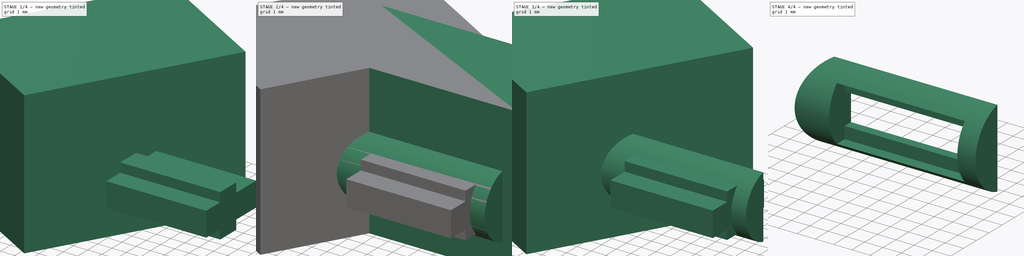
[diagram: build sequence overview — one tinted view per stage of 4, left to right]
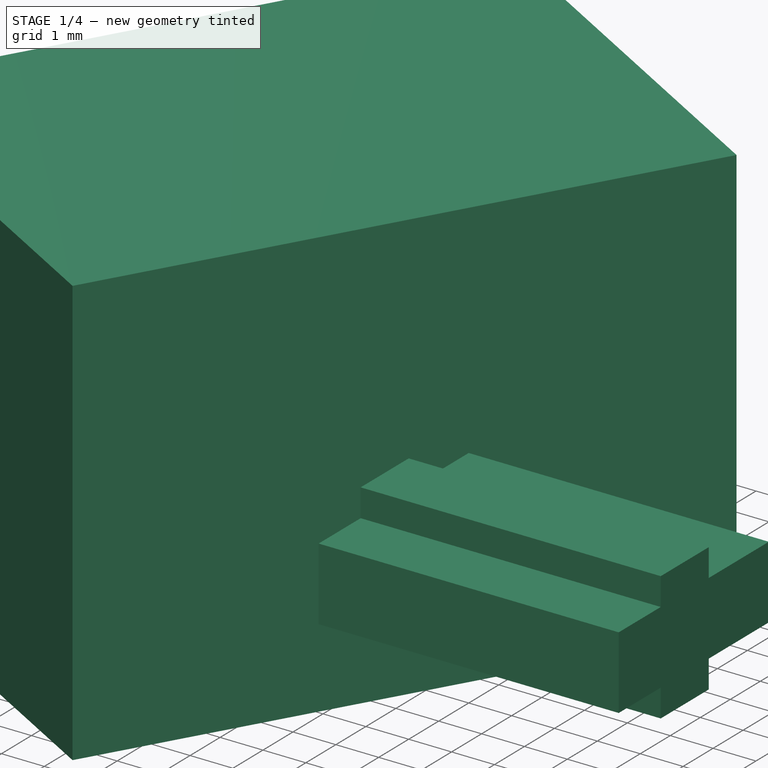
[diagram: stage 1 of 4 — iso view after this stage's code; geometry added in this stage tinted green]
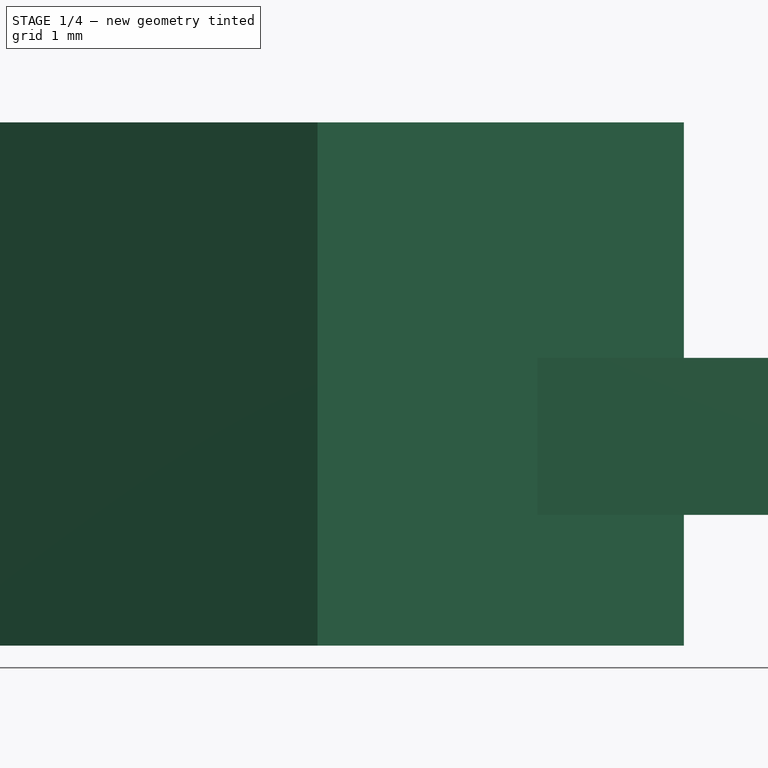
[diagram: stage 1 of 4 — front view after this stage's code; geometry added in this stage tinted green]
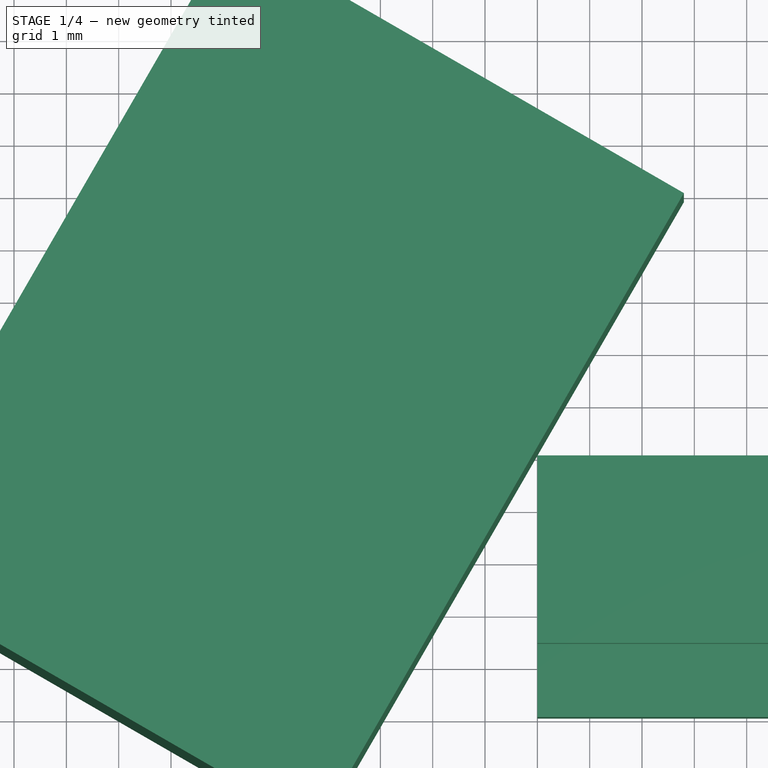
[diagram: stage 1 of 4 — top view after this stage's code; geometry added in this stage tinted green]
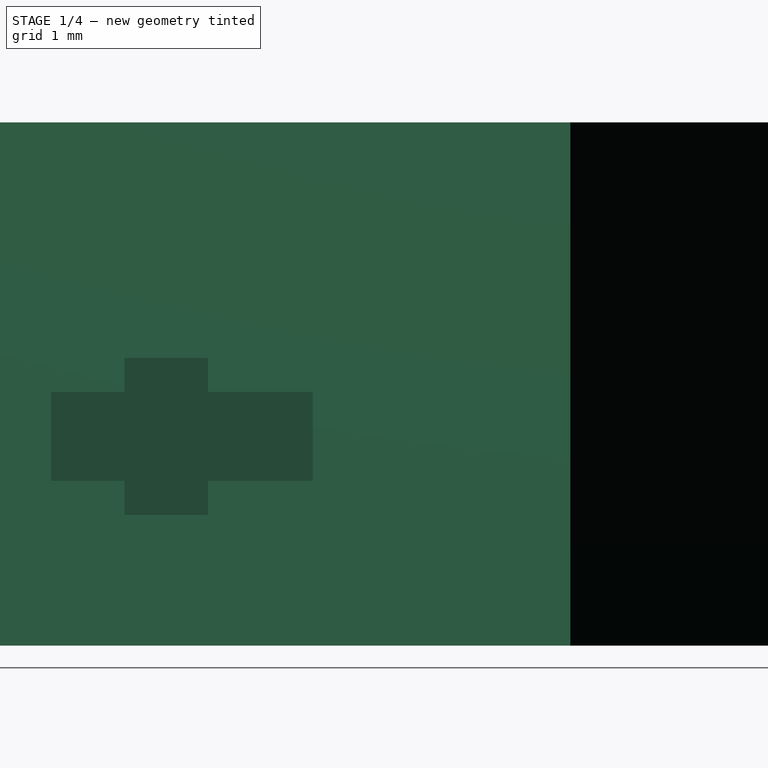
[diagram: stage 1 of 4 — right view after this stage's code; geometry added in this stage tinted green]
FCSTD DOCUMENT  (FreeCAD 0.20R29603 (Git))
Label: tem_mirror_flat2
License: All rights reserved
LicenseURL: http://en.wikipedia.org/wiki/All_rights_reserved
objects: Part::Cut×5, Part::Box×4, Sketcher::SketchObject×1, PartDesign::Revolution×1, PartDesign::Body×1, Part::Cylinder×1
note: 14 computed .brp shape members not serialized (recipe doc carries the construction recipe); baked Part::Feature solids carry a one-line shape summary decoded from their .brp

FEATURE [Part::Box] Box001  label="Würfel001"
  AttacherType = Attacher::AttachEngine3D
  Height = 1.7
  Length = 7
  Placement = pos=(1,-4,-0.85) rot=(0,0,1;0rad)
  Width = 5
FEATURE [Part::Box] Box002  label="Würfel002"
  AttacherType = Attacher::AttachEngine3D
  Height = 3
  Length = 7
  Placement = pos=(1,-2.6,-1.5) rot=(0,0,1;0rad)
  Width = 1.6
FEATURE [Part::Box] Box003  label="Würfel003"
  AttacherType = Attacher::AttachEngine3D
  Height = 10
  Length = 14
  Placement = pos=(-3.2,-6.2,-4) rot=(0,0,1;1.0472rad)
  Width = 10
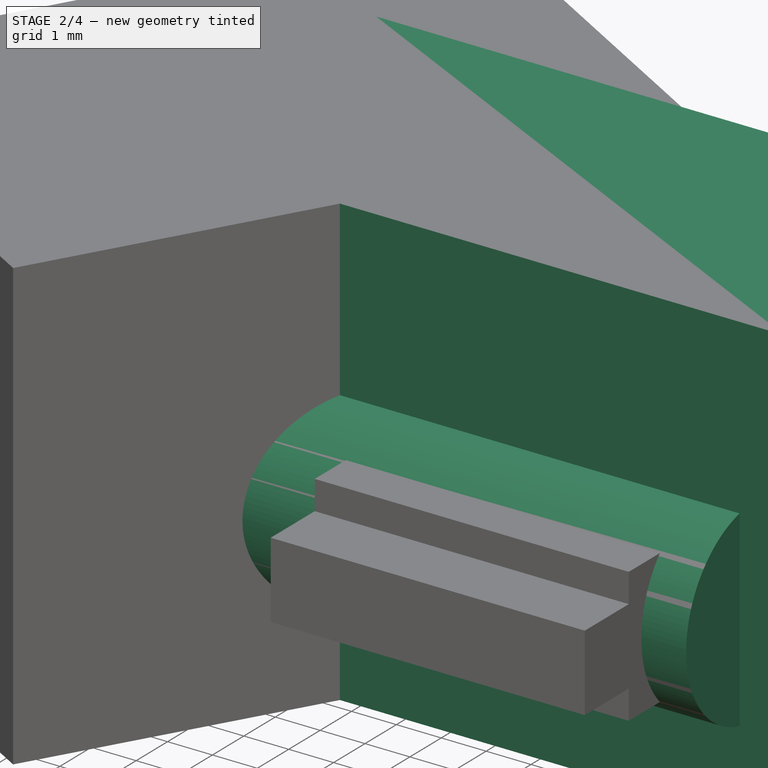
[diagram: stage 2 of 4 — iso view after this stage's code; geometry added in this stage tinted green]
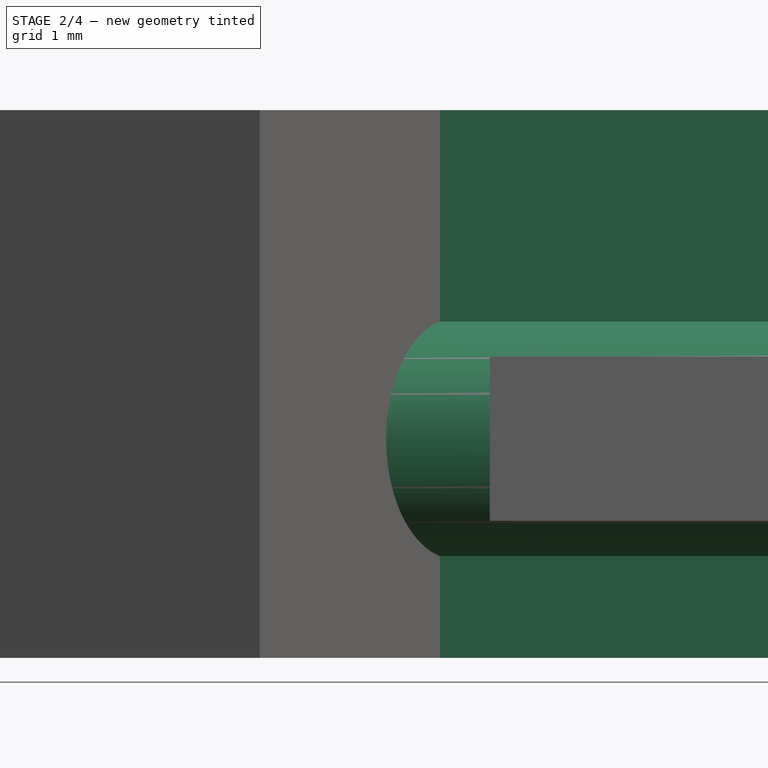
[diagram: stage 2 of 4 — front view after this stage's code; geometry added in this stage tinted green]
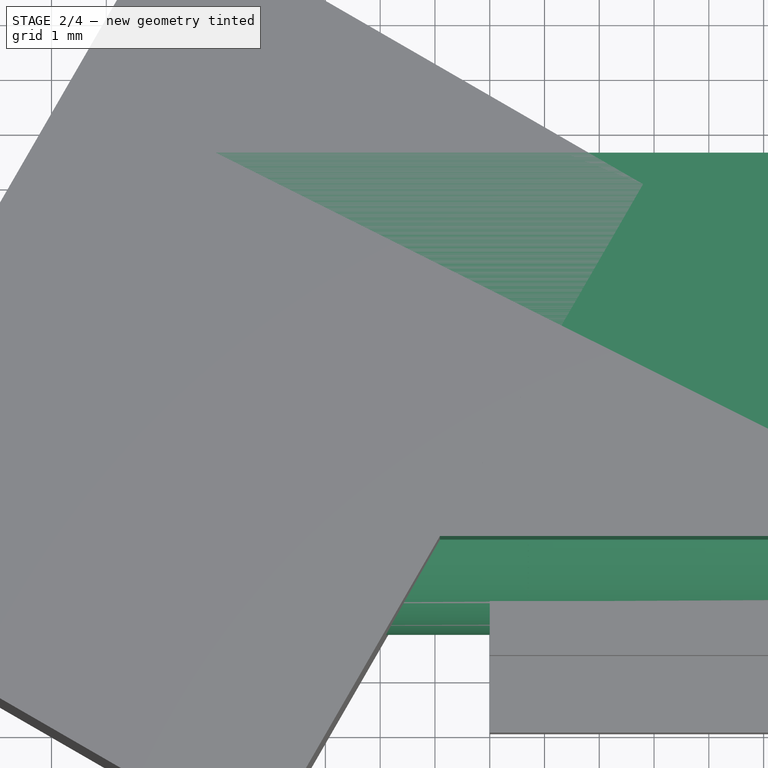
[diagram: stage 2 of 4 — top view after this stage's code; geometry added in this stage tinted green]
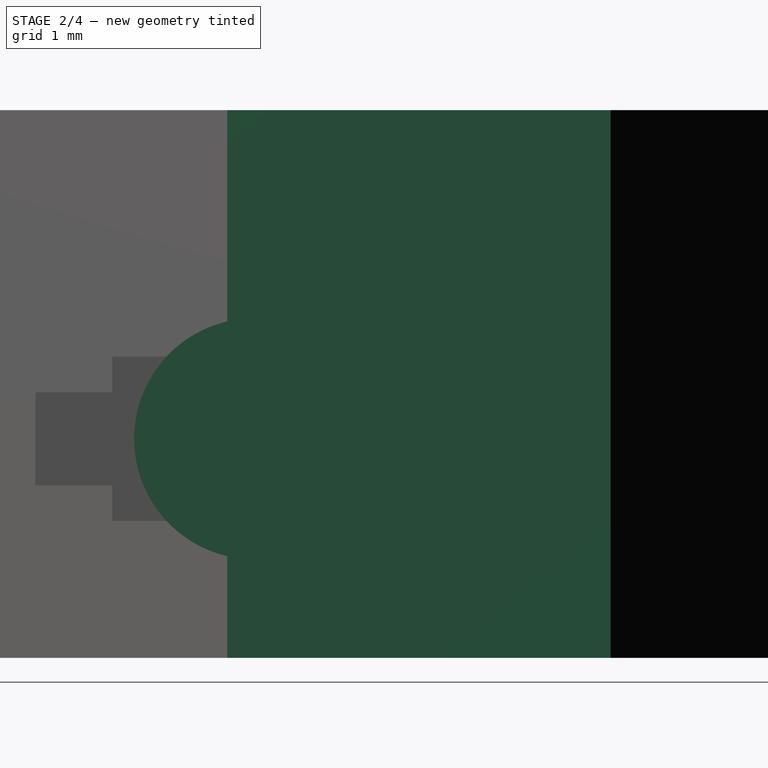
[diagram: stage 2 of 4 — right view after this stage's code; geometry added in this stage tinted green]
FEATURE [Sketcher::SketchObject] Sketch
  FullyConstrained = true
  MapMode = 5
  Support = -> [XY_Plane]
  sketch-geometry (5):
    g0: ArcOfParabola CenterX=2.24 CenterY=0 CenterZ=0 NormalX=0 NormalY=0 NormalZ=1 Focal=2.24 AngleXU=-3.14159 StartAngle=-2.2 EndAngle=0
    g1: GeomPoint X=0 Y=-3e-16 Z=0
    g2: LineSegment StartX=2.24 StartY=0 StartZ=0 EndX=0 EndY=-3e-16 EndZ=0
    g3: LineSegment StartX=1.69982 StartY=2.2 StartZ=0 EndX=1.69982 EndY=0 EndZ=0
    g4: LineSegment StartX=1.69982 StartY=0 StartZ=0 EndX=2.24 EndY=0 EndZ=0
  constraints (13):
    c: InternalAlignment(g1,g0)
    c: Coincident(g1,g2)
    c: Coincident(g0,g2)
    c: Coincident(g1,g-1)
    c: PointOnObject(g0,g-1)
    c: PointOnObject(g0,g-1)
    c: Coincident(g3,g0)
    c: PointOnObject(g3,g2)
    c: Vertical(g3)
    c: Coincident(g4,g3)
    c: Coincident(g4,g0)
    c: DistanceY(g3,g0) = 2.2
    c: DistanceX(g1,g0) = 2.24
FEATURE [PartDesign::Revolution] Revolution
  Angle = 360
  Axis = (1,0,0)
  Base = (0,0,0)
  Profile = -> Sketch
  ReferenceAxis = -> Sketch [H_Axis]
FEATURE [PartDesign::Body] Body
  Group = -> [Sketch,Revolution]
  Origin = -> Origin
  Placement = pos=(-1.7,20,0) rot=(0,0,1;0rad)
  Tip = -> Revolution
FEATURE [Part::Cylinder] Cylinder  label="Zylinder"
  Angle = 360
  AttacherType = Attacher::AttachEngine3D
  FirstAngle = 0
  Height = 13
  Placement = pos=(-4,0,0) rot=(0,1,0;1.5708rad)
  Radius = 2.2
  SecondAngle = 0
FEATURE [Part::Box] Box  label="Würfel"
  AttacherType = Attacher::AttachEngine3D
  Height = 10
  Length = 14
  Placement = pos=(-4,-0.5,-4) rot=(0,0,1;0rad)
  Width = 7
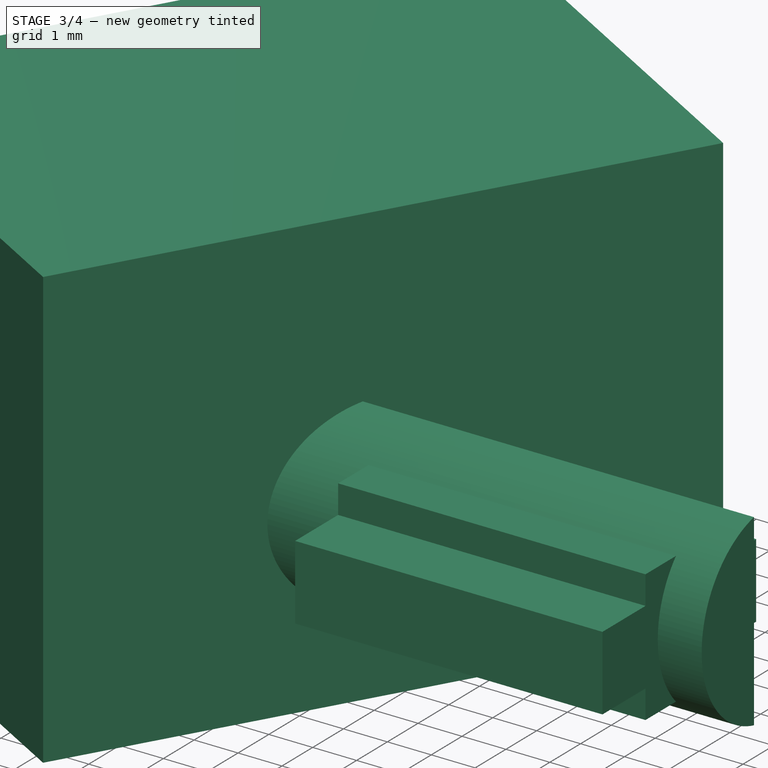
[diagram: stage 3 of 4 — iso view after this stage's code; geometry added in this stage tinted green]
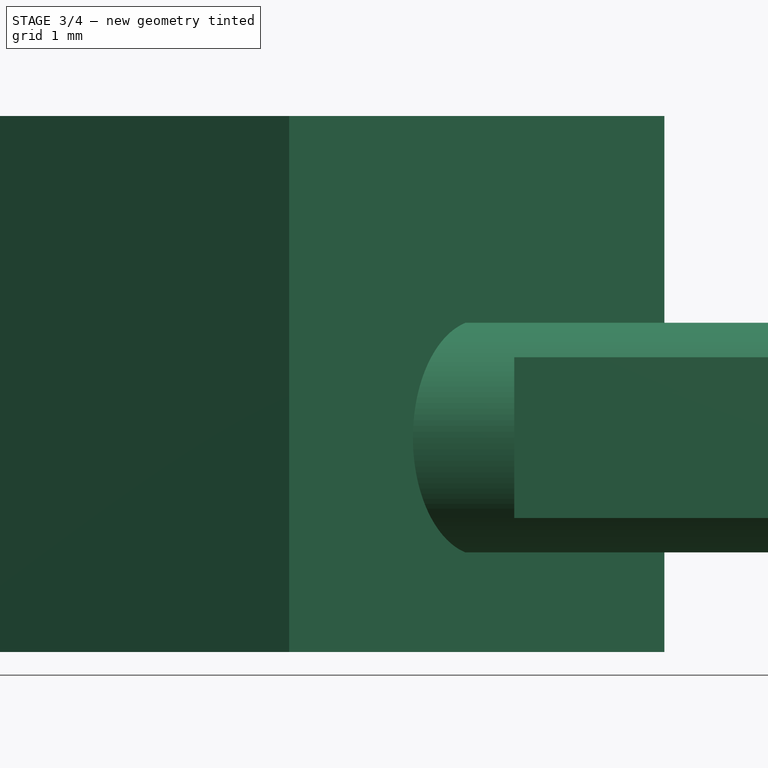
[diagram: stage 3 of 4 — front view after this stage's code; geometry added in this stage tinted green]
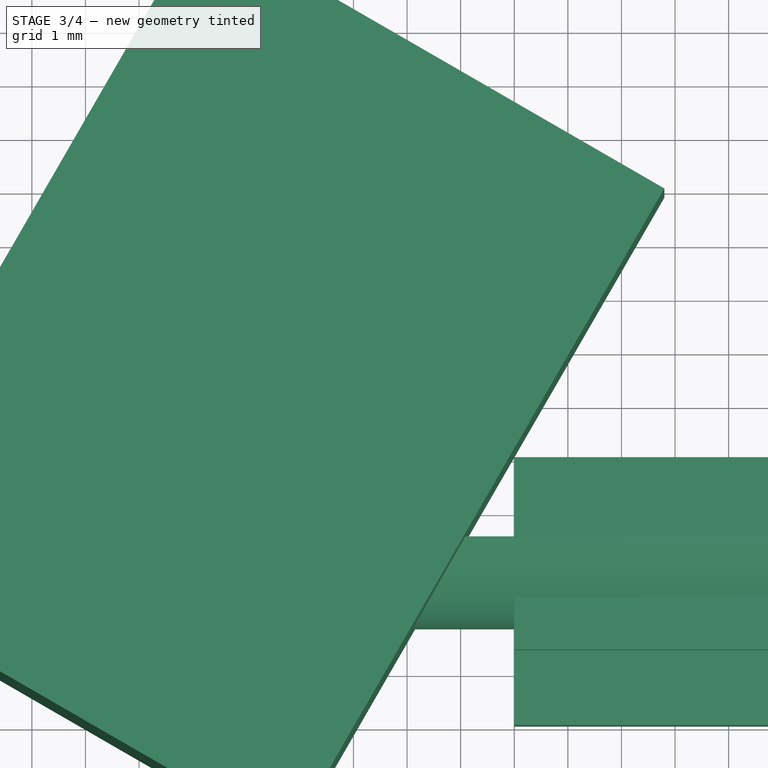
[diagram: stage 3 of 4 — top view after this stage's code; geometry added in this stage tinted green]
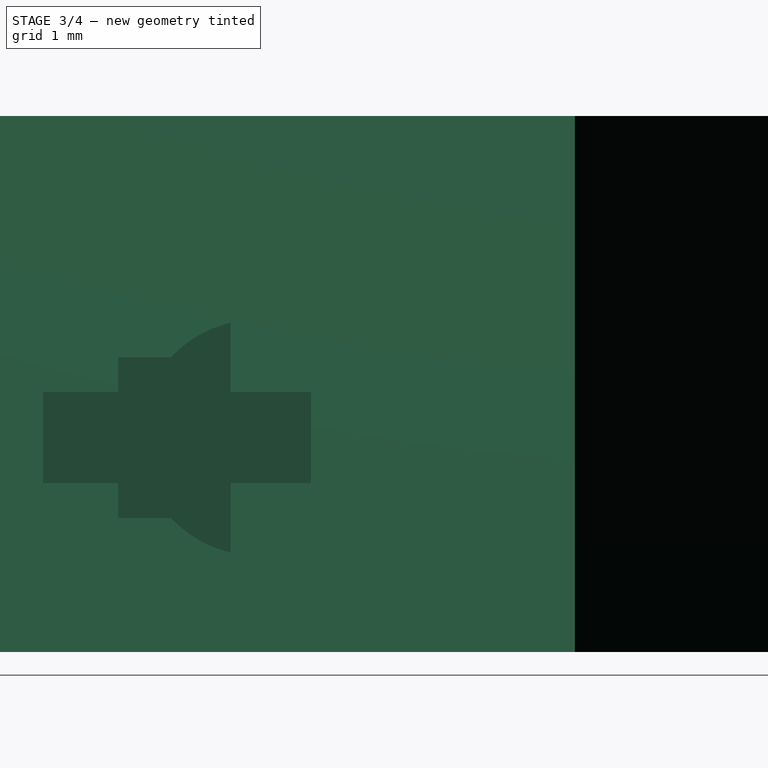
[diagram: stage 3 of 4 — right view after this stage's code; geometry added in this stage tinted green]
FEATURE [Part::Cut] Cut
  Base = -> Cylinder
  Tool = -> Body
FEATURE [Part::Cut] Cut001
  Base = -> Cut
  Tool = -> Box
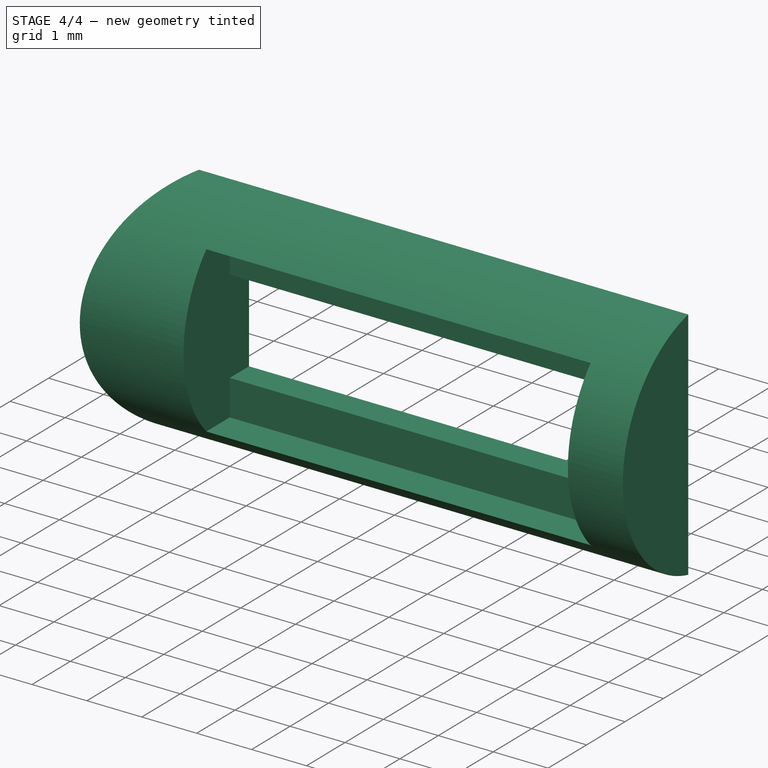
[diagram: stage 4 of 4 — iso view after this stage's code; geometry added in this stage tinted green]
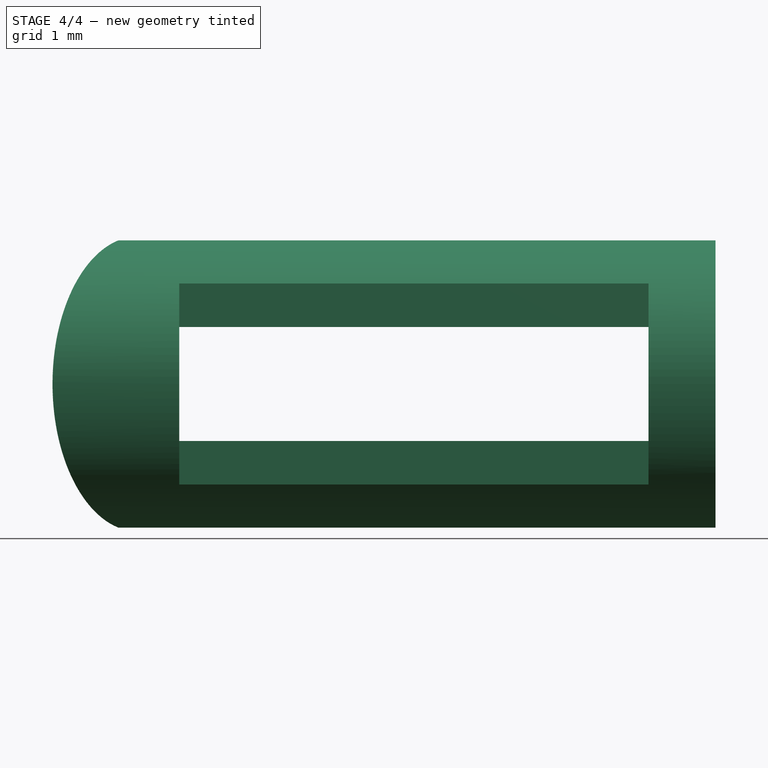
[diagram: stage 4 of 4 — front view after this stage's code; geometry added in this stage tinted green]
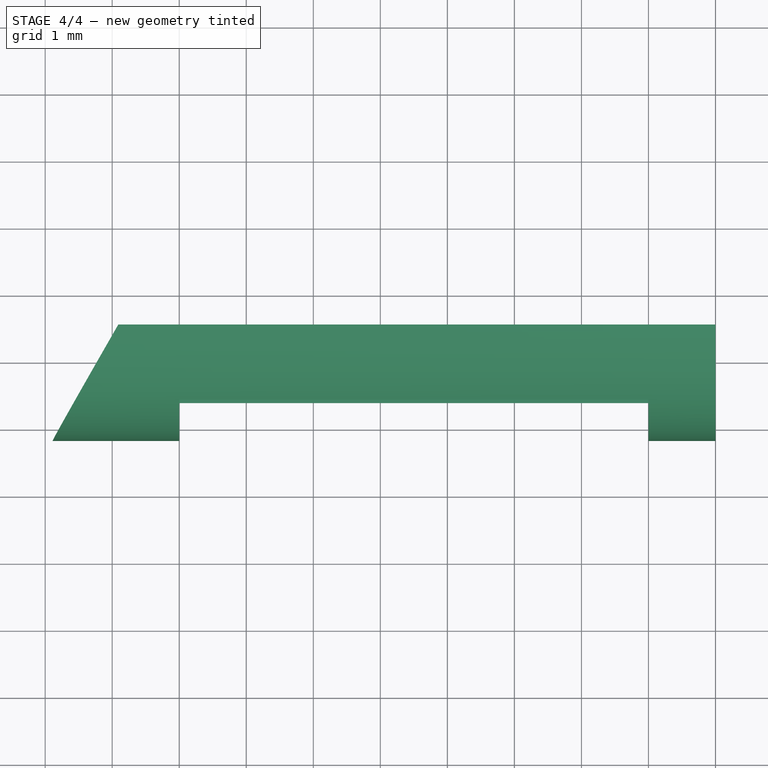
[diagram: stage 4 of 4 — top view after this stage's code; geometry added in this stage tinted green]
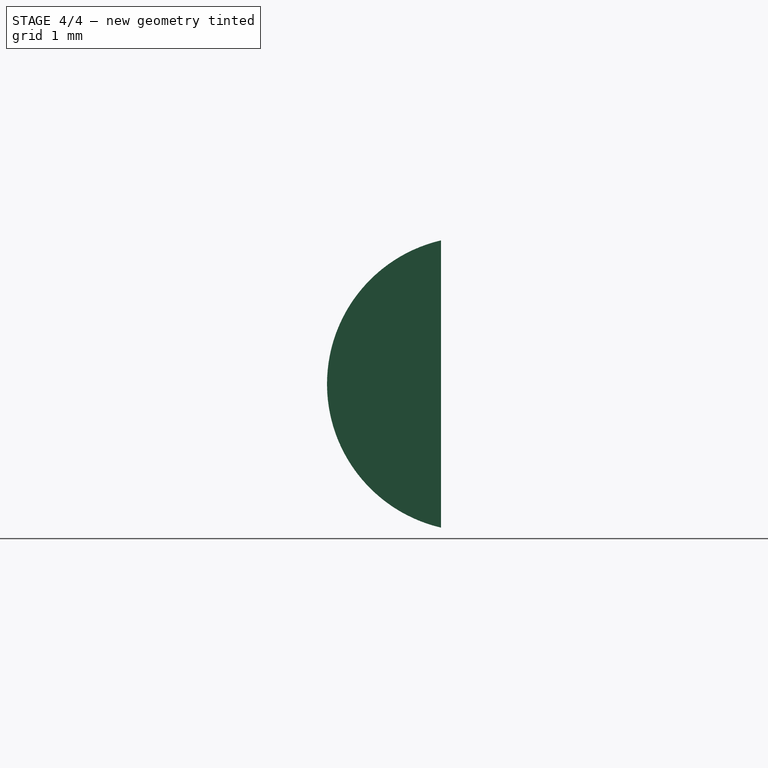
[diagram: stage 4 of 4 — right view after this stage's code; geometry added in this stage tinted green]
FEATURE [Part::Cut] Cut002
  Base = -> Cut001
  Tool = -> Box001
FEATURE [Part::Cut] Cut003
  Base = -> Cut002
  Tool = -> Box002
FEATURE [Part::Cut] Cut004
  Base = -> Cut003
  Tool = -> Box003
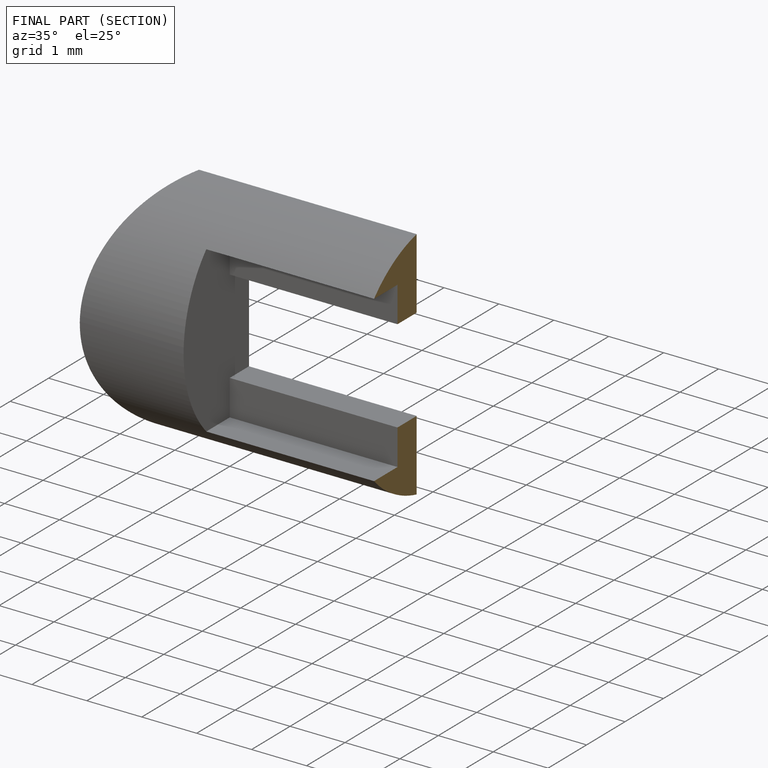
[diagram: finished part — half-section view (interior)]
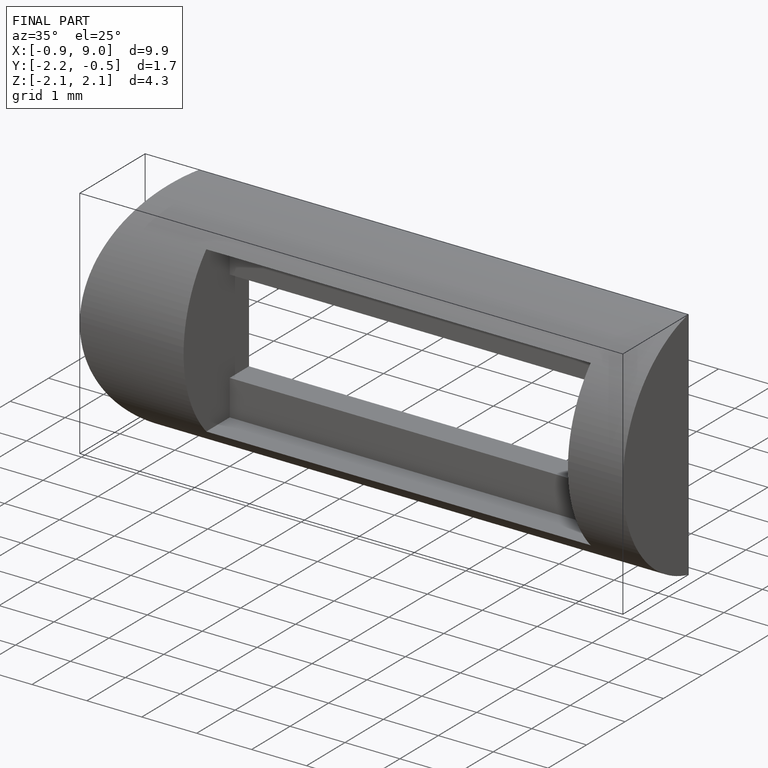
[diagram: finished part — iso view with bounding-box wireframe]
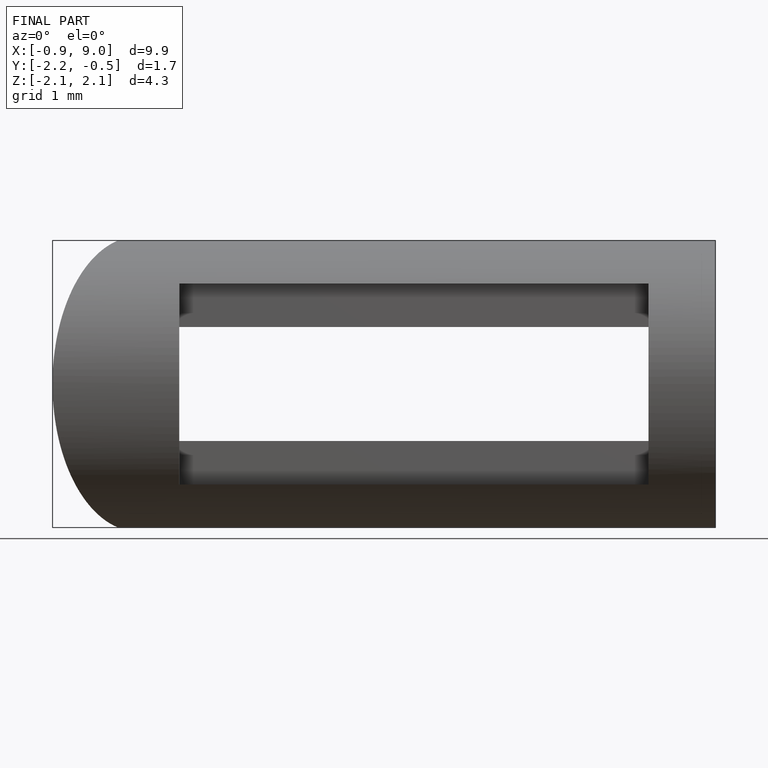
[diagram: finished part — front view with bounding-box wireframe]
